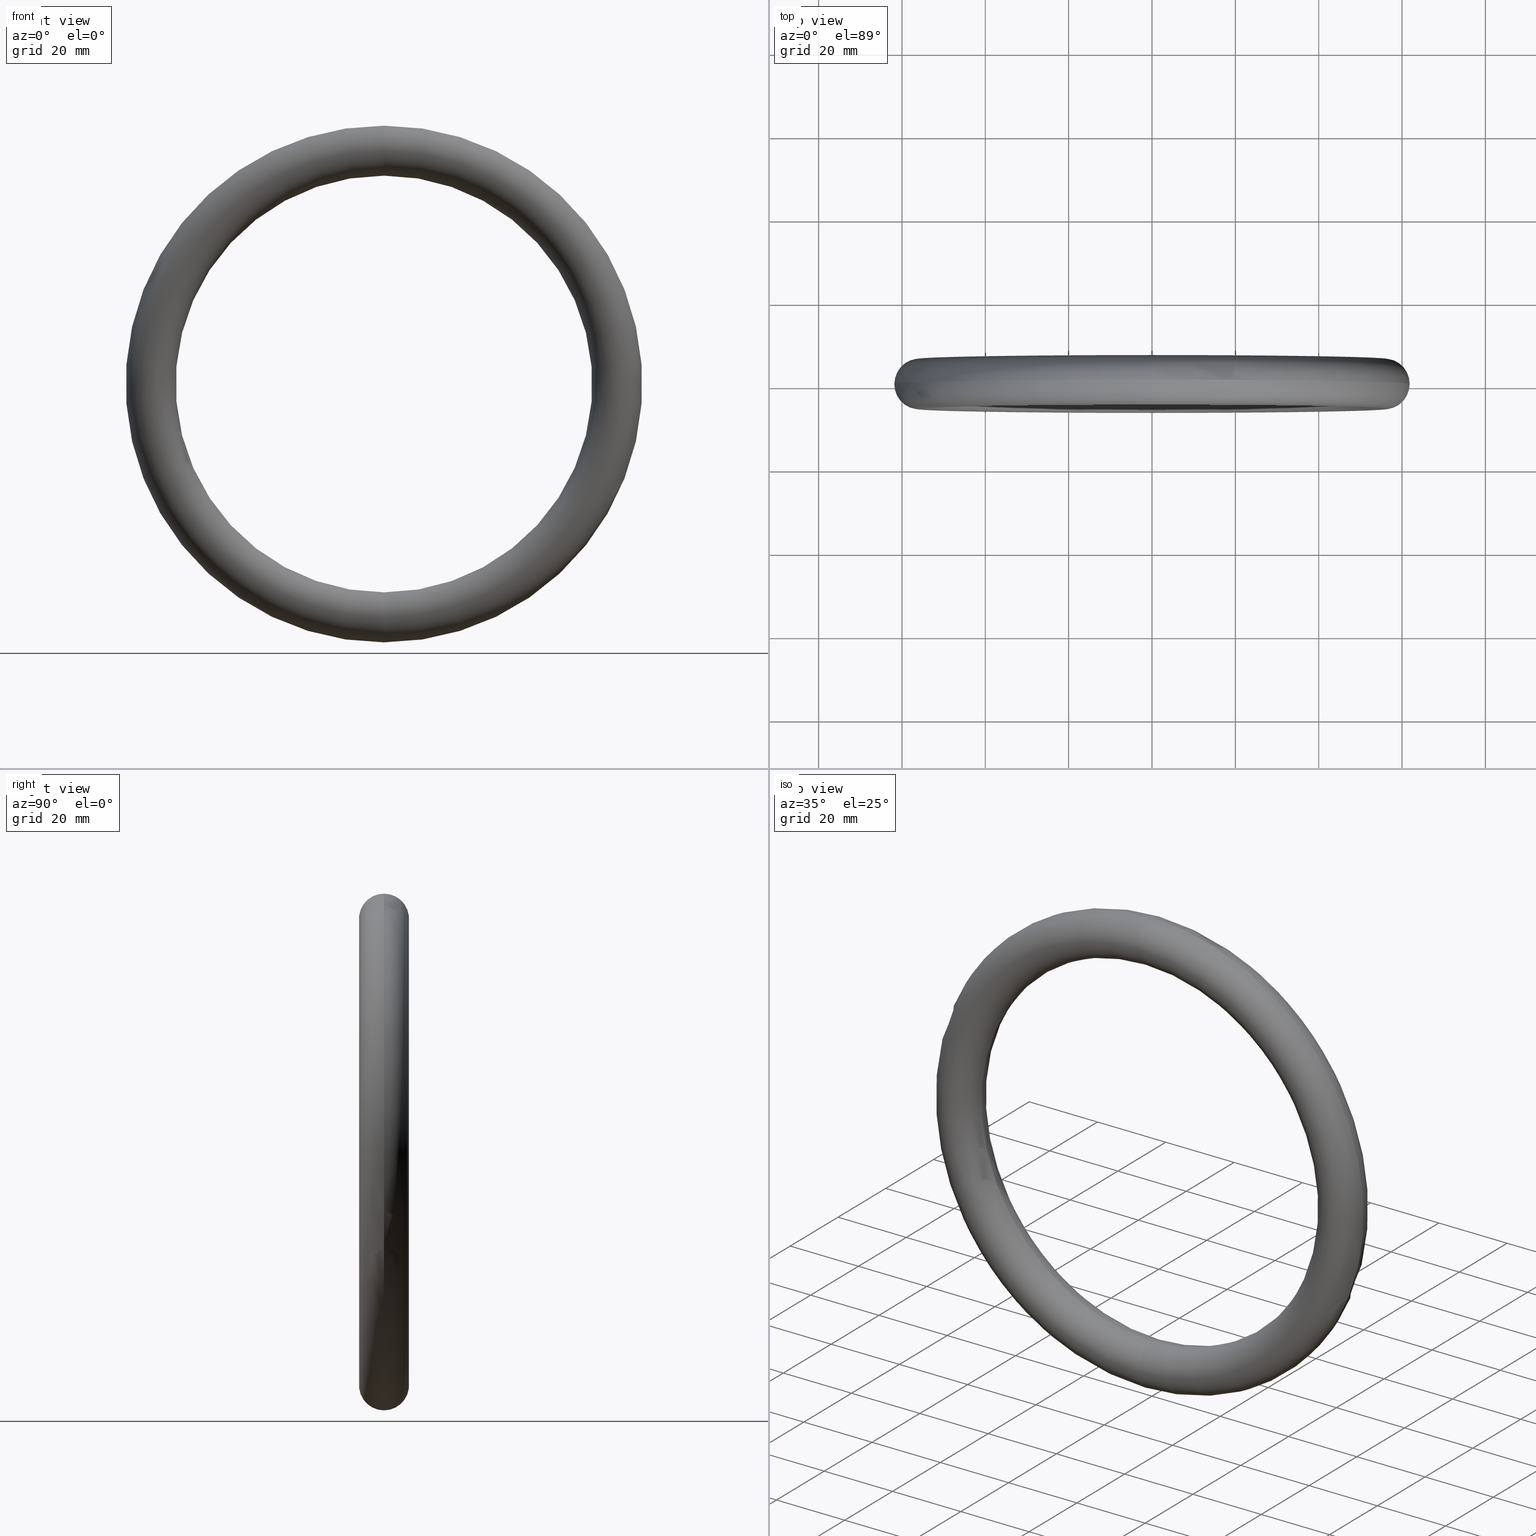
[diagram: canonical four-view strip — front | top / right | iso, engineering-drawing reading convention]
A machine part, canonical four-view strip (front | top / right | iso — engineering-drawing reading convention). The complete STEP part file that produces these views, byte-faithful:
ISO-10303-21;
HEADER;
FILE_DESCRIPTION (( 'STEP AP203' ),
    '1' );
FILE_NAME ('50381-240.step',
    '2021-04-26T12:00:42',
    ( '' ),
    ( '' ),
    'SwSTEP 2.0',
    'SolidWorks 2018',
    '' );
FILE_SCHEMA (( 'CONFIG_CONTROL_DESIGN' ));
ENDSEC;

DATA;
#1 = ADVANCED_FACE ( 'NONE', ( #256 ), #128, .T. ) ;
#2 = APPROVAL_PERSON_ORGANIZATION ( #153, #219, #263 ) ;
#3 = ORIENTED_EDGE ( 'NONE', *, *, #117, .T. ) ;
#4 = DIRECTION ( 'NONE',  ( -0.000000000000000000, -1.000000000000000000, -0.000000000000000000 ) ) ;
#5 = PRODUCT_DEFINITION_FORMATION_WITH_SPECIFIED_SOURCE ( 'ANY', '', #66, .NOT_KNOWN. ) ;
#6 = LOCAL_TIME ( 14, 0, 42.00000000000000000, #107 ) ;
#7 = COORDINATED_UNIVERSAL_TIME_OFFSET ( 1, 0, .AHEAD. ) ;
#8 = ORIENTED_EDGE ( 'NONE', *, *, #238, .F. ) ;
#9 = CC_DESIGN_APPROVAL ( #204, ( #124 ) ) ;
#10 = PERSON_AND_ORGANIZATION ( #38, #28 ) ;
#11 = PERSON_AND_ORGANIZATION_ROLE ( 'creator' ) ;
#12 = APPROVAL_ROLE ( '' ) ;
#13 = LOCAL_TIME ( 14, 0, 42.00000000000000000, #239 ) ;
#14 = APPROVAL_ROLE ( '' ) ;
#15 = EDGE_CURVE ( 'NONE', #240, #192, #71, .T. ) ;
#16 = PERSON_AND_ORGANIZATION_ROLE ( 'design_supplier' ) ;
#17 = SECURITY_CLASSIFICATION ( '', '', #83 ) ;
#18 = PERSON_AND_ORGANIZATION ( #38, #28 ) ;
#19 = APPROVAL ( #134, 'UNSPECIFIED' ) ;
#20 = COORDINATED_UNIVERSAL_TIME_OFFSET ( 1, 0, .AHEAD. ) ;
#21 = CC_DESIGN_PERSON_AND_ORGANIZATION_ASSIGNMENT ( #65, #16, ( #116 ) ) ;
#22 = PERSON_AND_ORGANIZATION ( #38, #28 ) ;
#23 = CARTESIAN_POINT ( 'NONE',  ( 0.000000000000000000, 0.000000000000000000, 0.000000000000000000 ) ) ;
#24 = PERSON_AND_ORGANIZATION ( #38, #28 ) ;
#25 = CIRCLE ( 'NONE', #213, 62.00000000000000000 ) ;
#26 = EDGE_CURVE ( 'NONE', #192, #32, #93, .T. ) ;
#27 = CC_DESIGN_DATE_AND_TIME_ASSIGNMENT ( #80, #135, ( #64 ) ) ;
#28 = ORGANIZATION ( 'UNSPECIFIED', 'UNSPECIFIED', '' ) ;
#29 = CC_DESIGN_APPROVAL ( #19, ( #5 ) ) ;
#30 = COORDINATED_UNIVERSAL_TIME_OFFSET ( 1, 0, .AHEAD. ) ;
#31 = APPLICATION_PROTOCOL_DEFINITION ( 'international standard', 'config_control_design', 1994, #242 ) ;
#32 = VERTEX_POINT ( 'NONE', #168 ) ;
#33 = PERSON_AND_ORGANIZATION_ROLE ( 'classification_officer' ) ;
#34 = DATE_TIME_ROLE ( 'creation_date' ) ;
#35 = LOCAL_TIME ( 14, 0, 42.00000000000000000, #30 ) ;
#36 = CC_DESIGN_PERSON_AND_ORGANIZATION_ASSIGNMENT ( #67, #228, ( #17 ) ) ;
#37 = FACE_OUTER_BOUND ( 'NONE', #227, .T. ) ;
#38 = PERSON ( 'UNSPECIFIED', 'UNSPECIFIED', 'UNSPECIFIED', ('UNSPECIFIED'), ('UNSPECIFIED'), ('UNSPECIFIED') ) ;
#39 = APPROVAL_PERSON_ORGANIZATION ( #92, #155, #12 ) ;
#40 = DIRECTION ( 'NONE',  ( 1.000000000000000000, 0.000000000000000000, -1.224646799147353207E-16 ) ) ;
#41 = ORIENTED_EDGE ( 'NONE', *, *, #246, .F. ) ;
#42 = ADVANCED_FACE ( 'NONE', ( #196 ), #170, .T. ) ;
#43 = DIRECTION ( 'NONE',  ( -0.000000000000000000, -1.000000000000000000, -0.000000000000000000 ) ) ;
#44 = EDGE_CURVE ( 'NONE', #81, #32, #252, .T. ) ;
#45 = LOCAL_TIME ( 14, 0, 42.00000000000000000, #7 ) ;
#46 = DIRECTION ( 'NONE',  ( 0.000000000000000000, 0.000000000000000000, 1.000000000000000000 ) ) ;
#47 = APPROVAL ( #139, 'UNSPECIFIED' ) ;
#48 = DIRECTION ( 'NONE',  ( -1.000000000000000000, 0.000000000000000000, 0.000000000000000000 ) ) ;
#49 = DIRECTION ( 'NONE',  ( 0.000000000000000000, 0.000000000000000000, -1.000000000000000000 ) ) ;
#50 = CC_DESIGN_PERSON_AND_ORGANIZATION_ASSIGNMENT ( #86, #223, ( #5 ) ) ;
#51 = LOCAL_TIME ( 14, 0, 42.00000000000000000, #120 ) ;
#52 = APPROVAL_DATE_TIME ( #98, #155 ) ;
#53 = CIRCLE ( 'NONE', #110, 5.999999999999998224 ) ;
#54 = AXIS2_PLACEMENT_3D ( 'NONE', #126, #234, #90 ) ;
#55 = APPLICATION_PROTOCOL_DEFINITION ( 'international standard', 'config_control_design', 1994, #267 ) ;
#56 = APPROVAL_PERSON_ORGANIZATION ( #202, #19, #198 ) ;
#57 = APPROVAL_STATUS ( 'not_yet_approved' ) ;
#58 =( NAMED_UNIT ( * ) SI_UNIT ( $, .STERADIAN. ) SOLID_ANGLE_UNIT ( ) );
#59 = CALENDAR_DATE ( 2021, 26, 4 ) ;
#60 = APPROVAL_PERSON_ORGANIZATION ( #22, #204, #14 ) ;
#61 = DIRECTION ( 'NONE',  ( 0.000000000000000000, 0.000000000000000000, -1.000000000000000000 ) ) ;
#62 = AXIS2_PLACEMENT_3D ( 'NONE', #186, #43, #206 ) ;
#63 = CC_DESIGN_APPROVAL ( #47, ( #64 ) ) ;
#64 = SECURITY_CLASSIFICATION ( '', '', #264 ) ;
#65 = PERSON_AND_ORGANIZATION ( #38, #28 ) ;
#66 = PRODUCT ( '50381-240', '50381-240', '', ( #225 ) ) ;
#67 = PERSON_AND_ORGANIZATION ( #38, #28 ) ;
#68 = DIRECTION ( 'NONE',  ( -1.224646799147352221E-16, 0.000000000000000000, -1.000000000000000000 ) ) ;
#69 = CARTESIAN_POINT ( 'NONE',  ( 0.000000000000000000, 0.000000000000000000, -56.00000000000000000 ) ) ;
#70 = AXIS2_PLACEMENT_3D ( 'NONE', #118, #119, #243 ) ;
#71 = CIRCLE ( 'NONE', #269, 5.999999999999998224 ) ;
#72 = DIRECTION ( 'NONE',  ( 0.000000000000000000, 0.000000000000000000, -1.000000000000000000 ) ) ;
#73 = DATE_AND_TIME ( #199, #244 ) ;
#74 = ORIENTED_EDGE ( 'NONE', *, *, #44, .F. ) ;
#75 = CC_DESIGN_SECURITY_CLASSIFICATION ( #64, ( #5 ) ) ;
#76 = CC_DESIGN_PERSON_AND_ORGANIZATION_ASSIGNMENT ( #10, #33, ( #64 ) ) ;
#77 = PERSON_AND_ORGANIZATION_ROLE ( 'creator' ) ;
#78 = PERSON_AND_ORGANIZATION_ROLE ( 'creator' ) ;
#79 = APPROVAL_ROLE ( '' ) ;
#80 = DATE_AND_TIME ( #220, #13 ) ;
#81 = VERTEX_POINT ( 'NONE', #212 ) ;
#82 = APPLICATION_PROTOCOL_DEFINITION ( 'international standard', 'config_control_design', 1994, #179 ) ;
#83 = SECURITY_CLASSIFICATION_LEVEL ( 'unclassified' ) ;
#84 = CC_DESIGN_APPROVAL ( #219, ( #17 ) ) ;
#85 = ORIENTED_EDGE ( 'NONE', *, *, #246, .T. ) ;
#86 = PERSON_AND_ORGANIZATION ( #38, #28 ) ;
#87 = FACE_OUTER_BOUND ( 'NONE', #185, .T. ) ;
#88 = DIRECTION ( 'NONE',  ( -1.000000000000000000, 0.000000000000000000, 0.000000000000000000 ) ) ;
#89 = CC_DESIGN_PERSON_AND_ORGANIZATION_ASSIGNMENT ( #156, #11, ( #5 ) ) ;
#90 = DIRECTION ( 'NONE',  ( 0.000000000000000000, 0.000000000000000000, -1.000000000000000000 ) ) ;
#91 = DIRECTION ( 'NONE',  ( -0.000000000000000000, -1.000000000000000000, -0.000000000000000000 ) ) ;
#92 = PERSON_AND_ORGANIZATION ( #38, #28 ) ;
#93 = CIRCLE ( 'NONE', #250, 62.00000000000000000 ) ;
#94 = CALENDAR_DATE ( 2021, 26, 4 ) ;
#95 = ORIENTED_EDGE ( 'NONE', *, *, #178, .F. ) ;
#96 = CC_DESIGN_PERSON_AND_ORGANIZATION_ASSIGNMENT ( #18, #261, ( #66 ) ) ;
#97 = CC_DESIGN_PERSON_AND_ORGANIZATION_ASSIGNMENT ( #113, #101, ( #231 ) ) ;
#98 = DATE_AND_TIME ( #174, #125 ) ;
#99 = APPROVAL_ROLE ( '' ) ;
#100 = DATE_TIME_ROLE ( 'classification_date' ) ;
#101 = PERSON_AND_ORGANIZATION_ROLE ( 'design_owner' ) ;
#102 = PERSON_AND_ORGANIZATION ( #38, #28 ) ;
#103 = PRODUCT_DEFINITION_SHAPE ( 'NONE', 'NONE',  #124 ) ;
#104 = PRODUCT_RELATED_PRODUCT_CATEGORY ( 'detail', '', ( #66 ) ) ;
#105 = CC_DESIGN_DATE_AND_TIME_ASSIGNMENT ( #230, #122, ( #166 ) ) ;
#106 = CALENDAR_DATE ( 2021, 26, 4 ) ;
#107 = COORDINATED_UNIVERSAL_TIME_OFFSET ( 1, 0, .AHEAD. ) ;
#108 = ORIENTED_EDGE ( 'NONE', *, *, #205, .T. ) ;
#109 = DIRECTION ( 'NONE',  ( 0.000000000000000000, 0.000000000000000000, -1.000000000000000000 ) ) ;
#110 = AXIS2_PLACEMENT_3D ( 'NONE', #69, #48, #46 ) ;
#111 = DATE_AND_TIME ( #194, #35 ) ;
#112 = APPROVAL_DATE_TIME ( #226, #47 ) ;
#113 = PERSON_AND_ORGANIZATION ( #38, #28 ) ;
#114 = APPROVAL ( #183, 'UNSPECIFIED' ) ;
#115 = COORDINATED_UNIVERSAL_TIME_OFFSET ( 1, 0, .AHEAD. ) ;
#116 = PRODUCT_DEFINITION_FORMATION_WITH_SPECIFIED_SOURCE ( 'ANY', '', #231, .NOT_KNOWN. ) ;
#117 = EDGE_CURVE ( 'NONE', #32, #81, #53, .T. ) ;
#118 = CARTESIAN_POINT ( 'NONE',  ( 0.000000000000000000, 0.000000000000000000, 0.000000000000000000 ) ) ;
#119 = DIRECTION ( 'NONE',  ( 0.000000000000000000, 0.000000000000000000, 1.000000000000000000 ) ) ;
#120 = COORDINATED_UNIVERSAL_TIME_OFFSET ( 1, 0, .AHEAD. ) ;
#121 =( LENGTH_UNIT ( ) NAMED_UNIT ( * ) SI_UNIT ( .MILLI., .METRE. ) );
#122 = DATE_TIME_ROLE ( 'creation_date' ) ;
#123 = EDGE_LOOP ( 'NONE', ( #95, #74, #108, #145 ) ) ;
#124 = PRODUCT_DEFINITION ( 'UNKNOWN', '', #116, #159 ) ;
#125 = LOCAL_TIME ( 14, 0, 42.00000000000000000, #188 ) ;
#126 = CARTESIAN_POINT ( 'NONE',  ( 0.000000000000000000, 0.000000000000000000, 0.000000000000000000 ) ) ;
#127 = AXIS2_PLACEMENT_3D ( 'NONE', #172, #148, #61 ) ;
#128 = TOROIDAL_SURFACE ( 'NONE', #62, 56.00000000000000000, 5.999999999999994671 ) ;
#129 = DIRECTION ( 'NONE',  ( 0.000000000000000000, 0.000000000000000000, 1.000000000000000000 ) ) ;
#130 = PERSON_AND_ORGANIZATION ( #38, #28 ) ;
#131 = ORIENTED_EDGE ( 'NONE', *, *, #178, .T. ) ;
#132 = ADVANCED_BREP_SHAPE_REPRESENTATION ( '50381-240', ( #224, #70 ), #154 ) ;
#133 = ORIENTED_EDGE ( 'NONE', *, *, #238, .T. ) ;
#134 = APPROVAL_STATUS ( 'not_yet_approved' ) ;
#135 = DATE_TIME_ROLE ( 'classification_date' ) ;
#136 = APPROVAL_DATE_TIME ( #111, #19 ) ;
#137 = TOROIDAL_SURFACE ( 'NONE', #54, 56.00000000000000000, 5.999999999999994671 ) ;
#138 = DIRECTION ( 'NONE',  ( 0.000000000000000000, 0.000000000000000000, 1.000000000000000000 ) ) ;
#139 = APPROVAL_STATUS ( 'not_yet_approved' ) ;
#140 = AXIS2_PLACEMENT_3D ( 'NONE', #197, #160, #245 ) ;
#141 = CIRCLE ( 'NONE', #140, 5.999999999999998224 ) ;
#142 = DIRECTION ( 'NONE',  ( -0.000000000000000000, -1.000000000000000000, -0.000000000000000000 ) ) ;
#143 = CC_DESIGN_SECURITY_CLASSIFICATION ( #17, ( #116 ) ) ;
#144 = APPROVAL_DATE_TIME ( #207, #204 ) ;
#145 = ORIENTED_EDGE ( 'NONE', *, *, #15, .T. ) ;
#146 = CARTESIAN_POINT ( 'NONE',  ( 0.000000000000000000, 0.000000000000000000, 0.000000000000000000 ) ) ;
#147 = APPROVAL_DATE_TIME ( #169, #219 ) ;
#148 = DIRECTION ( 'NONE',  ( -0.000000000000000000, -1.000000000000000000, -0.000000000000000000 ) ) ;
#149 = ORIENTED_EDGE ( 'NONE', *, *, #117, .F. ) ;
#150 = CARTESIAN_POINT ( 'NONE',  ( 7.592810154713590230E-15, 0.000000000000000000, 62.00000000000000000 ) ) ;
#151 = PRODUCT_RELATED_PRODUCT_CATEGORY ( 'detail', '', ( #231 ) ) ;
#152 = COORDINATED_UNIVERSAL_TIME_OFFSET ( 1, 0, .AHEAD. ) ;
#153 = PERSON_AND_ORGANIZATION ( #38, #28 ) ;
#154 =( GEOMETRIC_REPRESENTATION_CONTEXT ( 3 ) GLOBAL_UNCERTAINTY_ASSIGNED_CONTEXT ( ( #182 ) ) GLOBAL_UNIT_ASSIGNED_CONTEXT ( ( #121, #180, #58 ) ) REPRESENTATION_CONTEXT ( 'NONE', 'WORKASPACE' ) );
#155 = APPROVAL ( #247, 'UNSPECIFIED' ) ;
#156 = PERSON_AND_ORGANIZATION ( #38, #28 ) ;
#157 = APPROVAL_STATUS ( 'not_yet_approved' ) ;
#158 = APPLICATION_CONTEXT ( 'configuration controlled 3d designs of mechanical parts and assemblies' ) ;
#159 = DESIGN_CONTEXT ( 'detailed design', #158, 'design' ) ;
#160 = DIRECTION ( 'NONE',  ( 1.000000000000000000, 0.000000000000000000, -1.224646799147353207E-16 ) ) ;
#161 = AXIS2_PLACEMENT_3D ( 'NONE', #215, #88, #129 ) ;
#162 = APPLICATION_PROTOCOL_DEFINITION ( 'international standard', 'config_control_design', 1994, #158 ) ;
#163 = APPROVAL_DATE_TIME ( #255, #114 ) ;
#164 = CIRCLE ( 'NONE', #127, 50.00000000000000000 ) ;
#165 = CC_DESIGN_DATE_AND_TIME_ASSIGNMENT ( #262, #100, ( #17 ) ) ;
#166 = PRODUCT_DEFINITION ( 'UNKNOWN', '', #5, #222 ) ;
#167 = LOCAL_TIME ( 14, 0, 42.00000000000000000, #152 ) ;
#168 = CARTESIAN_POINT ( 'NONE',  ( 0.000000000000000000, 0.000000000000000000, -62.00000000000000000 ) ) ;
#169 = DATE_AND_TIME ( #106, #167 ) ;
#170 = TOROIDAL_SURFACE ( 'NONE', #260, 56.00000000000000000, 5.999999999999994671 ) ;
#171 = CARTESIAN_POINT ( 'NONE',  ( 6.858022075225178552E-15, 0.000000000000000000, 56.00000000000000000 ) ) ;
#172 = CARTESIAN_POINT ( 'NONE',  ( 0.000000000000000000, 7.347880794884112834E-16, 0.000000000000000000 ) ) ;
#173 = CC_DESIGN_PERSON_AND_ORGANIZATION_ASSIGNMENT ( #24, #78, ( #124 ) ) ;
#174 = CALENDAR_DATE ( 2021, 26, 4 ) ;
#175 = CALENDAR_DATE ( 2021, 26, 4 ) ;
#176 = SHAPE_DEFINITION_REPRESENTATION ( #229, #132 ) ;
#177 = AXIS2_PLACEMENT_3D ( 'NONE', #193, #4, #49 ) ;
#178 = EDGE_CURVE ( 'NONE', #32, #192, #25, .T. ) ;
#179 = APPLICATION_CONTEXT ( 'configuration controlled 3d designs of mechanical parts and assemblies' ) ;
#180 =( NAMED_UNIT ( * ) PLANE_ANGLE_UNIT ( ) SI_UNIT ( $, .RADIAN. ) );
#181 = PERSON_AND_ORGANIZATION ( #38, #28 ) ;
#182 = UNCERTAINTY_MEASURE_WITH_UNIT (LENGTH_MEASURE( 1.000000000000000082E-05 ), #121, 'distance_accuracy_value', 'NONE');
#183 = APPROVAL_STATUS ( 'not_yet_approved' ) ;
#184 = AXIS2_PLACEMENT_3D ( 'NONE', #265, #138, #200 ) ;
#185 = EDGE_LOOP ( 'NONE', ( #149, #131, #85, #218 ) ) ;
#186 = CARTESIAN_POINT ( 'NONE',  ( 0.000000000000000000, 0.000000000000000000, 0.000000000000000000 ) ) ;
#187 = DIRECTION ( 'NONE',  ( -0.000000000000000000, -1.000000000000000000, -0.000000000000000000 ) ) ;
#188 = COORDINATED_UNIVERSAL_TIME_OFFSET ( 1, 0, .AHEAD. ) ;
#189 = EDGE_LOOP ( 'NONE', ( #268, #241, #133, #203 ) ) ;
#190 = AXIS2_PLACEMENT_3D ( 'NONE', #23, #91, #191 ) ;
#191 = DIRECTION ( 'NONE',  ( 0.000000000000000000, 0.000000000000000000, -1.000000000000000000 ) ) ;
#192 = VERTEX_POINT ( 'NONE', #150 ) ;
#193 = CARTESIAN_POINT ( 'NONE',  ( 0.000000000000000000, 7.347880794884112834E-16, 0.000000000000000000 ) ) ;
#194 = CALENDAR_DATE ( 2021, 26, 4 ) ;
#195 = CIRCLE ( 'NONE', #177, 50.00000000000000000 ) ;
#196 = FACE_OUTER_BOUND ( 'NONE', #189, .T. ) ;
#197 = CARTESIAN_POINT ( 'NONE',  ( 6.858022075225178552E-15, 0.000000000000000000, 56.00000000000000000 ) ) ;
#198 = APPROVAL_ROLE ( '' ) ;
#199 = CALENDAR_DATE ( 2021, 26, 4 ) ;
#200 = DIRECTION ( 'NONE',  ( 1.000000000000000000, 0.000000000000000000, 0.000000000000000000 ) ) ;
#201 = MECHANICAL_CONTEXT ( 'NONE', #267, 'mechanical' ) ;
#202 = PERSON_AND_ORGANIZATION ( #38, #28 ) ;
#203 = ORIENTED_EDGE ( 'NONE', *, *, #44, .T. ) ;
#204 = APPROVAL ( #57, 'UNSPECIFIED' ) ;
#205 = EDGE_CURVE ( 'NONE', #81, #240, #195, .T. ) ;
#206 = DIRECTION ( 'NONE',  ( 0.000000000000000000, 0.000000000000000000, -1.000000000000000000 ) ) ;
#207 = DATE_AND_TIME ( #94, #266 ) ;
#208 = ADVANCED_FACE ( 'NONE', ( #87 ), #211, .T. ) ;
#209 = PERSON_AND_ORGANIZATION ( #38, #28 ) ;
#210 = DIRECTION ( 'NONE',  ( -0.000000000000000000, -1.000000000000000000, -0.000000000000000000 ) ) ;
#211 = TOROIDAL_SURFACE ( 'NONE', #190, 56.00000000000000000, 5.999999999999994671 ) ;
#212 = CARTESIAN_POINT ( 'NONE',  ( 0.000000000000000000, 0.000000000000000000, -50.00000000000000000 ) ) ;
#213 = AXIS2_PLACEMENT_3D ( 'NONE', #254, #210, #253 ) ;
#214 = CC_DESIGN_DATE_AND_TIME_ASSIGNMENT ( #73, #34, ( #124 ) ) ;
#215 = CARTESIAN_POINT ( 'NONE',  ( 0.000000000000000000, 0.000000000000000000, -56.00000000000000000 ) ) ;
#216 = APPROVAL_PERSON_ORGANIZATION ( #209, #114, #79 ) ;
#217 = CALENDAR_DATE ( 2021, 26, 4 ) ;
#218 = ORIENTED_EDGE ( 'NONE', *, *, #205, .F. ) ;
#219 = APPROVAL ( #157, 'UNSPECIFIED' ) ;
#220 = CALENDAR_DATE ( 2021, 26, 4 ) ;
#221 = PERSON_AND_ORGANIZATION_ROLE ( 'creator' ) ;
#222 = DESIGN_CONTEXT ( 'detailed design', #179, 'design' ) ;
#223 = PERSON_AND_ORGANIZATION_ROLE ( 'design_supplier' ) ;
#224 = MANIFOLD_SOLID_BREP ( 'Austragung1', #248 ) ;
#225 = MECHANICAL_CONTEXT ( 'NONE', #242, 'mechanical' ) ;
#226 = DATE_AND_TIME ( #175, #233 ) ;
#227 = EDGE_LOOP ( 'NONE', ( #41, #237, #3, #8 ) ) ;
#228 = PERSON_AND_ORGANIZATION_ROLE ( 'classification_officer' ) ;
#229 = PRODUCT_DEFINITION_SHAPE ( 'NONE', 'NONE',  #166 ) ;
#230 = DATE_AND_TIME ( #257, #45 ) ;
#231 = PRODUCT ( '50381-240', '50381-240', '', ( #201 ) ) ;
#232 = ADVANCED_FACE ( 'NONE', ( #37 ), #137, .T. ) ;
#233 = LOCAL_TIME ( 14, 0, 42.00000000000000000, #20 ) ;
#234 = DIRECTION ( 'NONE',  ( -0.000000000000000000, -1.000000000000000000, -0.000000000000000000 ) ) ;
#235 = CARTESIAN_POINT ( 'NONE',  ( 6.123233995736766874E-15, 0.000000000000000000, 50.00000000000000000 ) ) ;
#236 = CC_DESIGN_APPROVAL ( #155, ( #166 ) ) ;
#237 = ORIENTED_EDGE ( 'NONE', *, *, #26, .T. ) ;
#238 = EDGE_CURVE ( 'NONE', #240, #81, #164, .T. ) ;
#239 = COORDINATED_UNIVERSAL_TIME_OFFSET ( 1, 0, .AHEAD. ) ;
#240 = VERTEX_POINT ( 'NONE', #235 ) ;
#241 = ORIENTED_EDGE ( 'NONE', *, *, #15, .F. ) ;
#242 = APPLICATION_CONTEXT ( 'configuration controlled 3d designs of mechanical parts and assemblies' ) ;
#243 = DIRECTION ( 'NONE',  ( 1.000000000000000000, 0.000000000000000000, 0.000000000000000000 ) ) ;
#244 = LOCAL_TIME ( 14, 0, 42.00000000000000000, #251 ) ;
#245 = DIRECTION ( 'NONE',  ( -1.224646799147352221E-16, 0.000000000000000000, -1.000000000000000000 ) ) ;
#246 = EDGE_CURVE ( 'NONE', #192, #240, #141, .T. ) ;
#247 = APPROVAL_STATUS ( 'not_yet_approved' ) ;
#248 = CLOSED_SHELL ( 'NONE', ( #232, #208, #1, #42 ) ) ;
#249 = CC_DESIGN_PERSON_AND_ORGANIZATION_ASSIGNMENT ( #181, #77, ( #116 ) ) ;
#250 = AXIS2_PLACEMENT_3D ( 'NONE', #270, #142, #109 ) ;
#251 = COORDINATED_UNIVERSAL_TIME_OFFSET ( 1, 0, .AHEAD. ) ;
#252 = CIRCLE ( 'NONE', #161, 5.999999999999998224 ) ;
#253 = DIRECTION ( 'NONE',  ( 0.000000000000000000, 0.000000000000000000, -1.000000000000000000 ) ) ;
#254 = CARTESIAN_POINT ( 'NONE',  ( 0.000000000000000000, 0.000000000000000000, 0.000000000000000000 ) ) ;
#255 = DATE_AND_TIME ( #217, #51 ) ;
#256 = FACE_OUTER_BOUND ( 'NONE', #123, .T. ) ;
#257 = CALENDAR_DATE ( 2021, 26, 4 ) ;
#258 = CC_DESIGN_APPROVAL ( #114, ( #116 ) ) ;
#259 = CC_DESIGN_PERSON_AND_ORGANIZATION_ASSIGNMENT ( #102, #221, ( #166 ) ) ;
#260 = AXIS2_PLACEMENT_3D ( 'NONE', #146, #187, #72 ) ;
#261 = PERSON_AND_ORGANIZATION_ROLE ( 'design_owner' ) ;
#262 = DATE_AND_TIME ( #59, #6 ) ;
#263 = APPROVAL_ROLE ( '' ) ;
#264 = SECURITY_CLASSIFICATION_LEVEL ( 'unclassified' ) ;
#265 = CARTESIAN_POINT ( 'NONE',  ( 0.000000000000000000, 0.000000000000000000, 0.000000000000000000 ) ) ;
#266 = LOCAL_TIME ( 14, 0, 42.00000000000000000, #115 ) ;
#267 = APPLICATION_CONTEXT ( 'configuration controlled 3d designs of mechanical parts and assemblies' ) ;
#268 = ORIENTED_EDGE ( 'NONE', *, *, #26, .F. ) ;
#269 = AXIS2_PLACEMENT_3D ( 'NONE', #171, #40, #68 ) ;
#270 = CARTESIAN_POINT ( 'NONE',  ( 0.000000000000000000, 0.000000000000000000, 0.000000000000000000 ) ) ;
#271 = APPROVAL_PERSON_ORGANIZATION ( #130, #47, #99 ) ;
ENDSEC;
END-ISO-10303-21;
